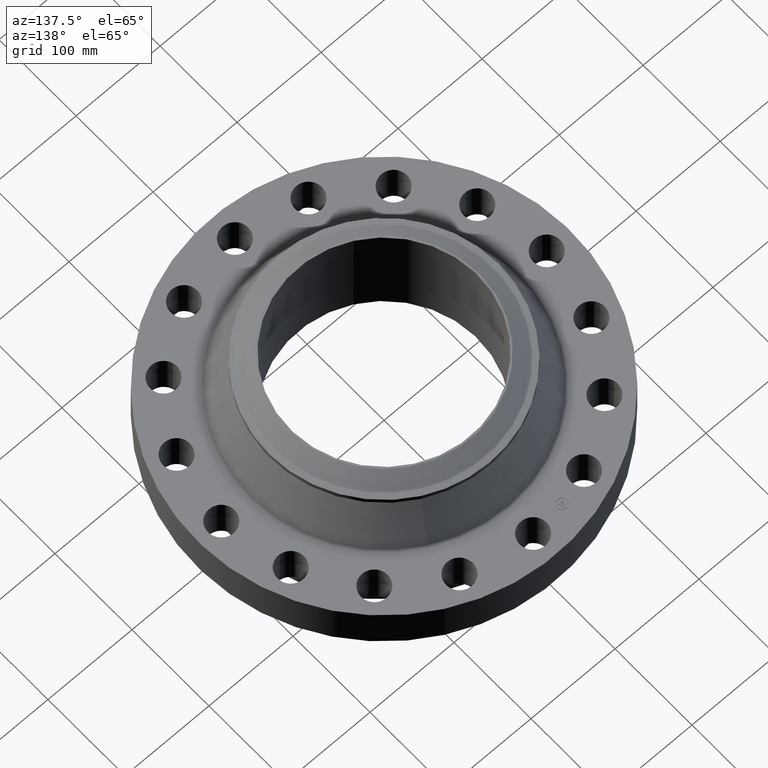
[diagram: clean part render]
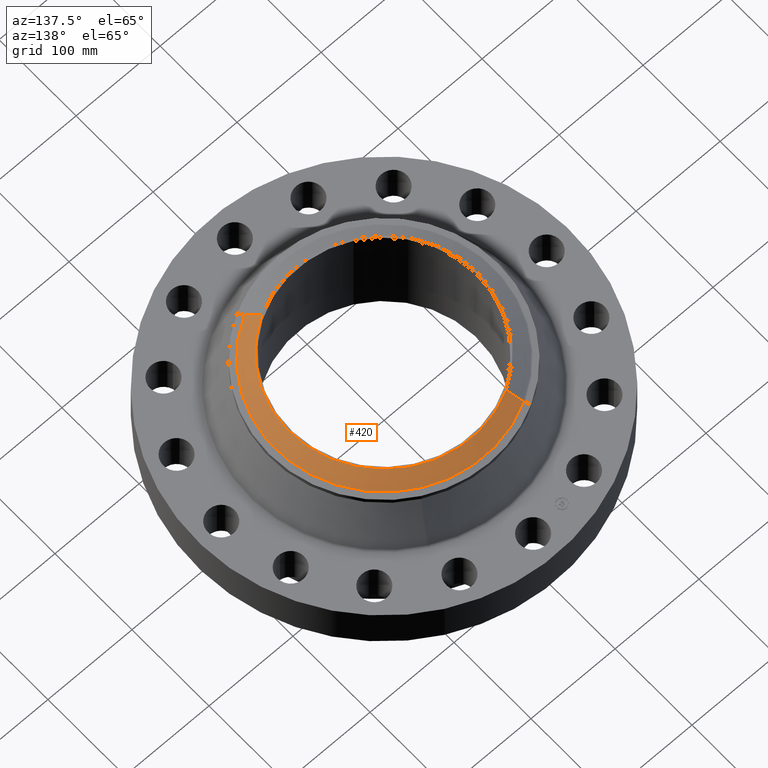
[diagram: same view with one face highlighted and labeled with its STEP entity id]
A machine part, auxiliary view. The second image highlights one B-rep face of the part: STEP entity #420.
In plain terms, the highlighted conical surface has half-angle 52.5 deg.
Its self-contained STEP definition (entity closure, byte-faithful):
#355=AXIS2_PLACEMENT_3D('Circle Axis2P3D',#353,#354,$) ;
#393=AXIS2_PLACEMENT_3D('Cone Axis2P3D',#390,#391,#392) ;
#404=AXIS2_PLACEMENT_3D('Circle Axis2P3D',#402,#403,$) ;
#353=CARTESIAN_POINT('Axis2P3D Location',(0.,0.,4.88000000002)) ;
#357=CARTESIAN_POINT('Vertex',(2.13523677381,-3.90852469741,4.88000000002)) ;
#359=CARTESIAN_POINT('Vertex',(-2.13523677381,3.90852469741,4.88000000002)) ;
#390=CARTESIAN_POINT('Axis2P3D Location',(0.,0.,4.88000000002)) ;
#395=CARTESIAN_POINT('Line Origine',(2.29017807636,-4.19214284931,4.63201437258)) ;
#399=CARTESIAN_POINT('Vertex',(2.44511937891,-4.47576100122,4.38402874515)) ;
#402=CARTESIAN_POINT('Axis2P3D Location',(0.,0.,4.38402874515)) ;
#406=CARTESIAN_POINT('Vertex',(-2.44511937891,4.47576100122,4.38402874515)) ;
#409=CARTESIAN_POINT('Line Origine',(-2.29017807636,4.19214284931,4.63201437258)) ;
#354=DIRECTION('Axis2P3D Direction',(0.,0.,-0.0393700787402)) ;
#391=DIRECTION('Axis2P3D Direction',(-0.,-0.,-0.0393700787402)) ;
#392=DIRECTION('Axis2P3D XDirection',(0.0188750212049,-0.0345504945626,0.)) ;
#396=DIRECTION('Vector Direction',(0.014974561121,-0.02741075027,-0.023966985394)) ;
#403=DIRECTION('Axis2P3D Direction',(0.,0.,-0.0393700787402)) ;
#410=DIRECTION('Vector Direction',(-0.014974561121,0.02741075027,-0.023966985394)) ;
#397=VECTOR('Line Direction',#396,0.0393700787402) ;
#411=VECTOR('Line Direction',#410,0.0393700787402) ;
#415=ORIENTED_EDGE('',*,*,#361,.F.) ;
#416=ORIENTED_EDGE('',*,*,#401,.T.) ;
#417=ORIENTED_EDGE('',*,*,#408,.T.) ;
#418=ORIENTED_EDGE('',*,*,#413,.F.) ;
#420=ADVANCED_FACE('PartBody',(#419),#394,.T.) ;
#356=CIRCLE('generated circle',#355,4.4537401575) ;
#405=CIRCLE('generated circle',#404,5.10010248105) ;
#394=CONICAL_SURFACE('Cone',#393,4.4537401575,0.916297857297) ;
#361=EDGE_CURVE('',#358,#360,#356,.F.) ;
#401=EDGE_CURVE('',#358,#400,#398,.T.) ;
#408=EDGE_CURVE('',#400,#407,#405,.F.) ;
#413=EDGE_CURVE('',#360,#407,#412,.T.) ;
#414=EDGE_LOOP('',(#415,#416,#417,#418)) ;
#419=FACE_OUTER_BOUND('',#414,.T.) ;
#398=LINE('Line',#395,#397) ;
#412=LINE('Line',#409,#411) ;
#358=VERTEX_POINT('',#357) ;
#360=VERTEX_POINT('',#359) ;
#400=VERTEX_POINT('',#399) ;
#407=VERTEX_POINT('',#406) ;